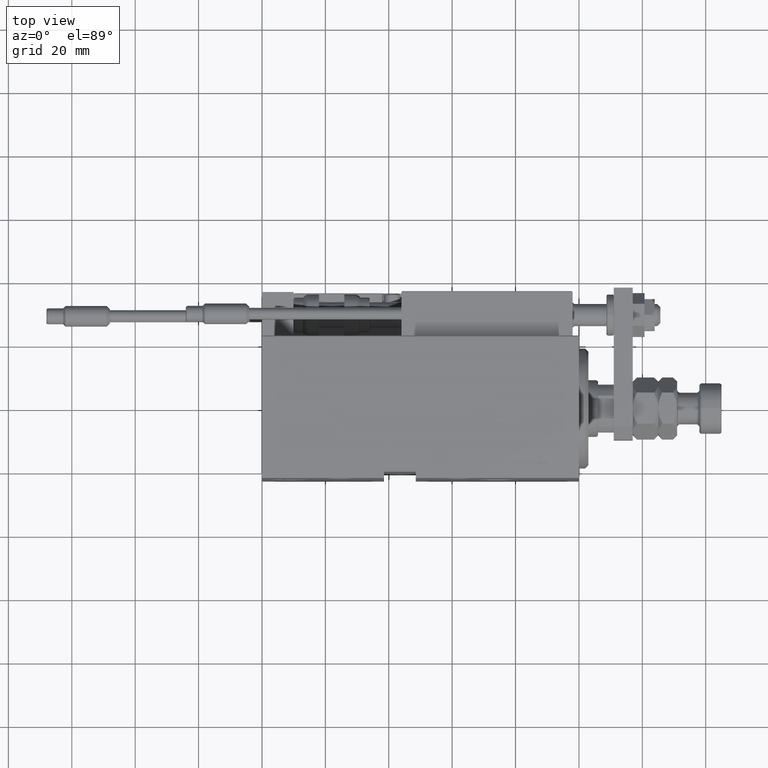
[diagram: clean part render]
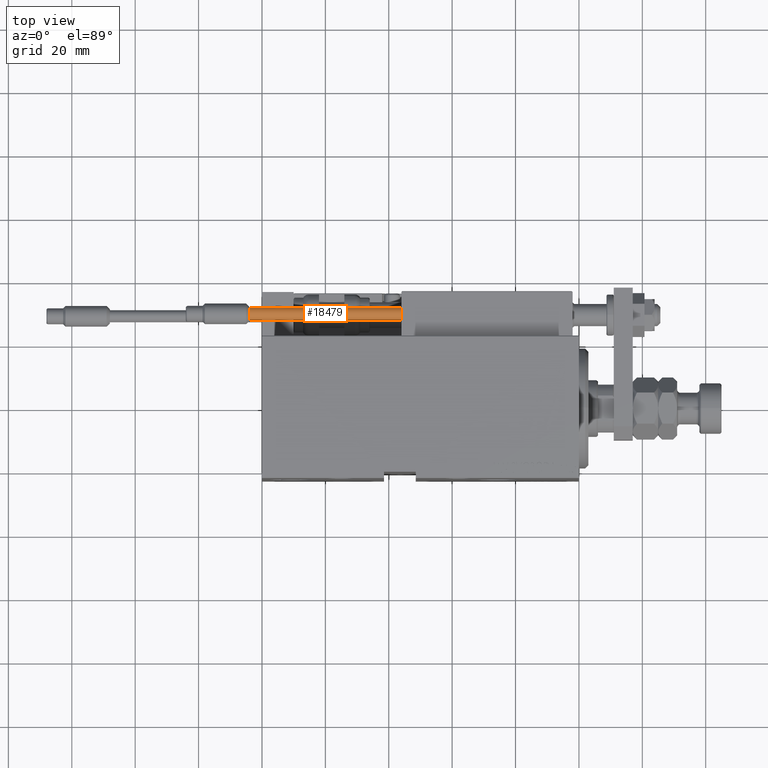
[diagram: same view with one face highlighted and labeled with its STEP entity id]
A machine part, top view. The second image highlights one B-rep face of the part: STEP entity #18479.
In plain terms, the highlighted cylindrical surface (edge-blend (fillet) strip) has radius 1.9 mm, axis along (1, 0, -0).
Its self-contained STEP definition (entity closure, byte-faithful):
#547 = CIRCLE ( 'NONE', #13932, 1.899999999999999467 ) ;
#843 = VERTEX_POINT ( 'NONE', #22850 ) ;
#941 = CARTESIAN_POINT ( 'NONE',  ( 1.899999999999999467, 2.326828918379970872E-16, 48.00000000000000000 ) ) ;
#2813 = CARTESIAN_POINT ( 'NONE',  ( 0.000000000000000000, 0.000000000000000000, 0.000000000000000000 ) ) ;
#2823 = CARTESIAN_POINT ( 'NONE',  ( 1.899999999999999467, 2.326828918379970872E-16, 0.000000000000000000 ) ) ;
#7296 = VECTOR ( 'NONE', #15527, 1000.000000000000000 ) ;
#8326 = CARTESIAN_POINT ( 'NONE',  ( 0.000000000000000000, 0.000000000000000000, 48.00000000000000000 ) ) ;
#8829 = EDGE_CURVE ( 'NONE', #843, #10160, #16053, .T. ) ;
#10160 = VERTEX_POINT ( 'NONE', #21489 ) ;
#11728 = VERTEX_POINT ( 'NONE', #35248 ) ;
#12253 = DIRECTION ( 'NONE',  ( -0.000000000000000000, -0.000000000000000000, -1.000000000000000000 ) ) ;
#12465 = DIRECTION ( 'NONE',  ( -0.000000000000000000, -0.000000000000000000, -1.000000000000000000 ) ) ;
#13030 = CYLINDRICAL_SURFACE ( 'NONE', #15168, 1.899999999999999467 ) ;
#13932 = AXIS2_PLACEMENT_3D ( 'NONE', #2813, #22214, #38730 ) ;
#14530 = ORIENTED_EDGE ( 'NONE', *, *, #8829, .T. ) ;
#15168 = AXIS2_PLACEMENT_3D ( 'NONE', #8326, #12253, #20388 ) ;
#15527 = DIRECTION ( 'NONE',  ( -0.000000000000000000, -0.000000000000000000, -1.000000000000000000 ) ) ;
#16053 = LINE ( 'NONE', #23649, #7296 ) ;
#16364 = CARTESIAN_POINT ( 'NONE',  ( 0.000000000000000000, 0.000000000000000000, 48.00000000000000000 ) ) ;
#18021 = ORIENTED_EDGE ( 'NONE', *, *, #43501, .F. ) ;
#18479 = ADVANCED_FACE ( 'NONE', ( #40571 ), #13030, .T. ) ;
#19953 = CIRCLE ( 'NONE', #20790, 1.899999999999999467 ) ;
#20388 = DIRECTION ( 'NONE',  ( -1.000000000000000000, 0.000000000000000000, 0.000000000000000000 ) ) ;
#20790 = AXIS2_PLACEMENT_3D ( 'NONE', #16364, #32352, #44399 ) ;
#21489 = CARTESIAN_POINT ( 'NONE',  ( -1.899999999999999467, 0.000000000000000000, 0.000000000000000000 ) ) ;
#22214 = DIRECTION ( 'NONE',  ( 0.000000000000000000, 0.000000000000000000, 1.000000000000000000 ) ) ;
#22850 = CARTESIAN_POINT ( 'NONE',  ( -1.899999999999999467, 0.000000000000000000, 48.00000000000000000 ) ) ;
#23541 = ORIENTED_EDGE ( 'NONE', *, *, #32541, .T. ) ;
#23649 = CARTESIAN_POINT ( 'NONE',  ( -1.899999999999999467, 0.000000000000000000, 48.00000000000000000 ) ) ;
#27706 = VERTEX_POINT ( 'NONE', #2823 ) ;
#30831 = EDGE_LOOP ( 'NONE', ( #18021, #43993, #14530, #23541 ) ) ;
#32352 = DIRECTION ( 'NONE',  ( 0.000000000000000000, 0.000000000000000000, 1.000000000000000000 ) ) ;
#32541 = EDGE_CURVE ( 'NONE', #10160, #27706, #547, .T. ) ;
#35248 = CARTESIAN_POINT ( 'NONE',  ( 1.899999999999999467, 2.326828918379970872E-16, 48.00000000000000000 ) ) ;
#36599 = VECTOR ( 'NONE', #12465, 1000.000000000000000 ) ;
#38730 = DIRECTION ( 'NONE',  ( 1.000000000000000000, 0.000000000000000000, 0.000000000000000000 ) ) ;
#40571 = FACE_OUTER_BOUND ( 'NONE', #30831, .T. ) ;
#43501 = EDGE_CURVE ( 'NONE', #11728, #27706, #48099, .T. ) ;
#43993 = ORIENTED_EDGE ( 'NONE', *, *, #46795, .F. ) ;
#44399 = DIRECTION ( 'NONE',  ( 1.000000000000000000, 0.000000000000000000, 0.000000000000000000 ) ) ;
#46795 = EDGE_CURVE ( 'NONE', #843, #11728, #19953, .T. ) ;
#48099 = LINE ( 'NONE', #941, #36599 ) ;